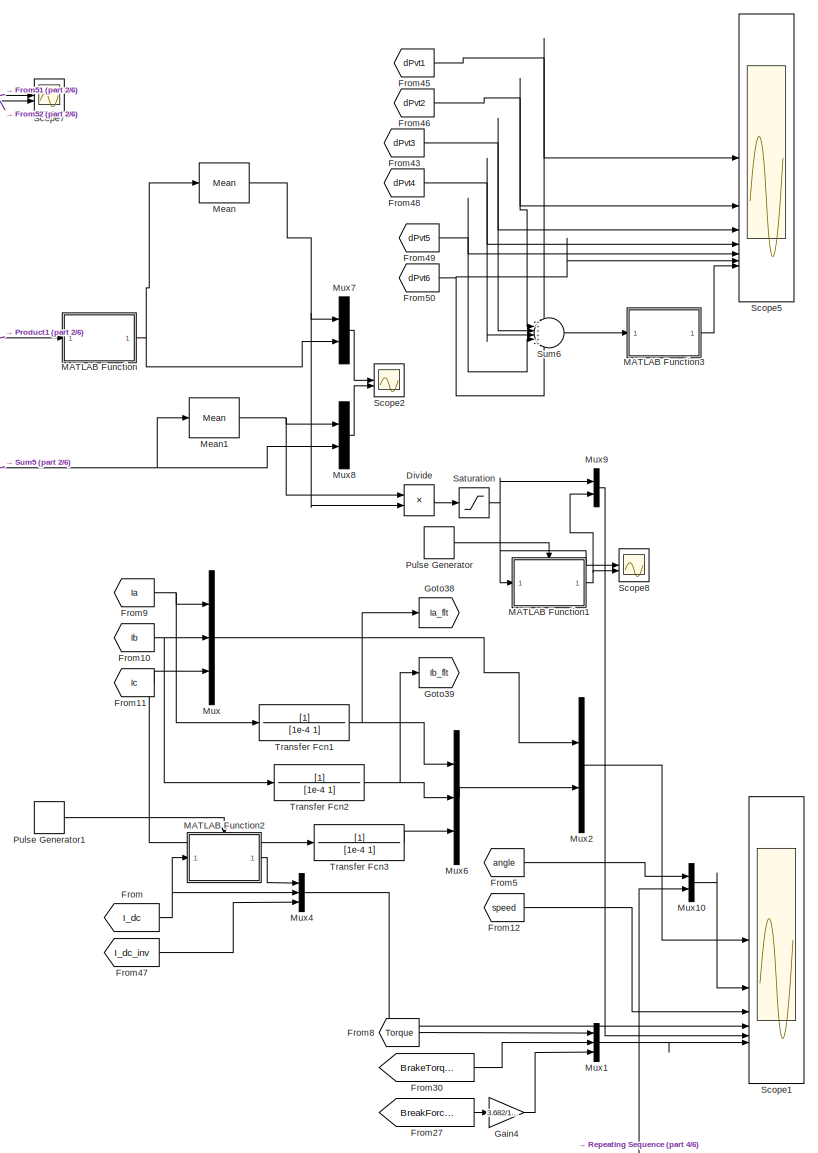
[diagram: root canvas - part 1/6, top right region]
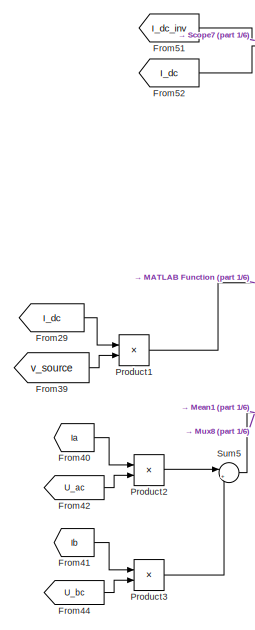
[diagram: root canvas - part 2/6, top center region]
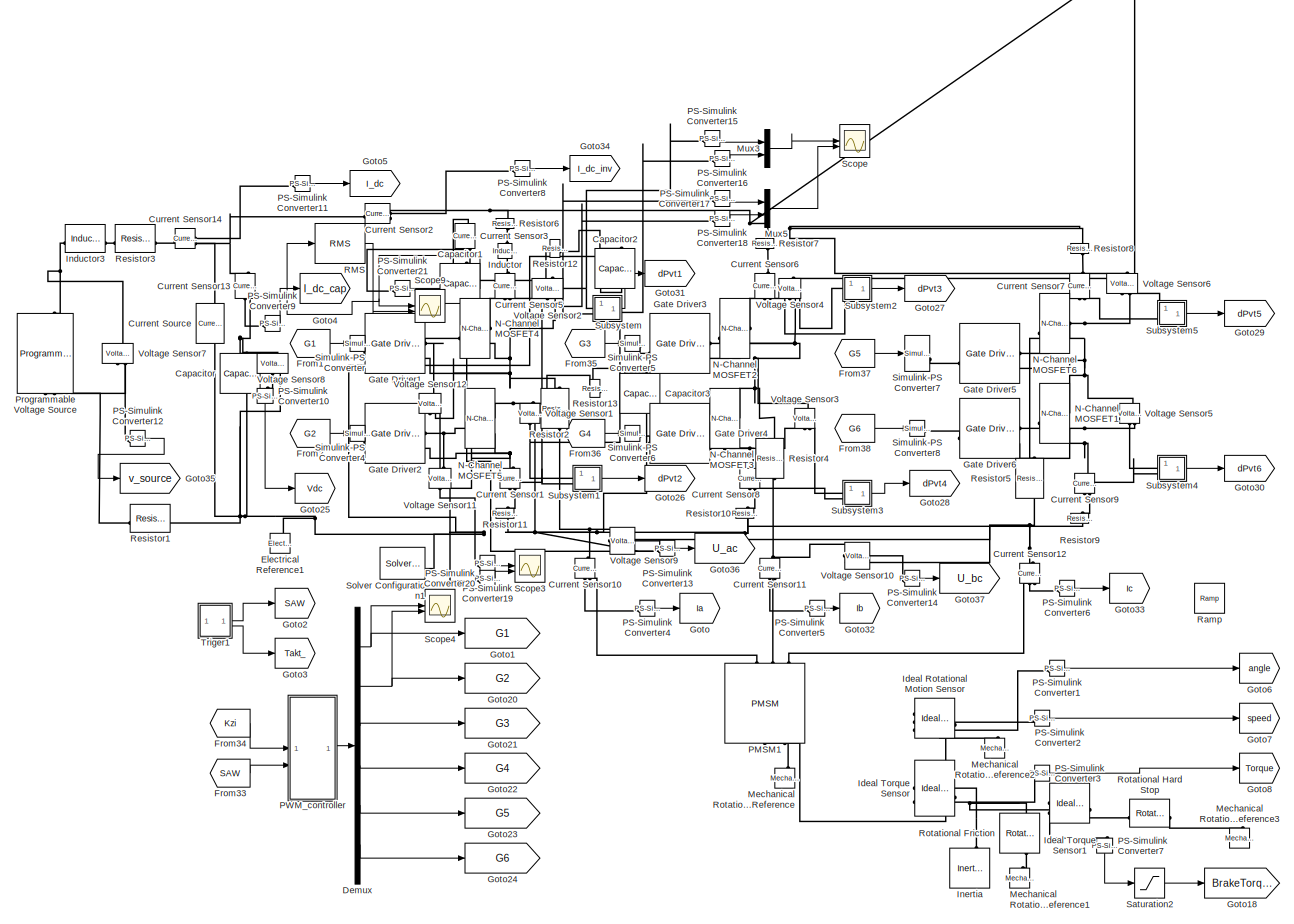
[diagram: root canvas - part 3/6, middle left region]
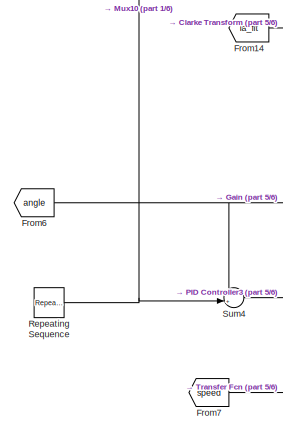
[diagram: root canvas - part 4/6, bottom left region]
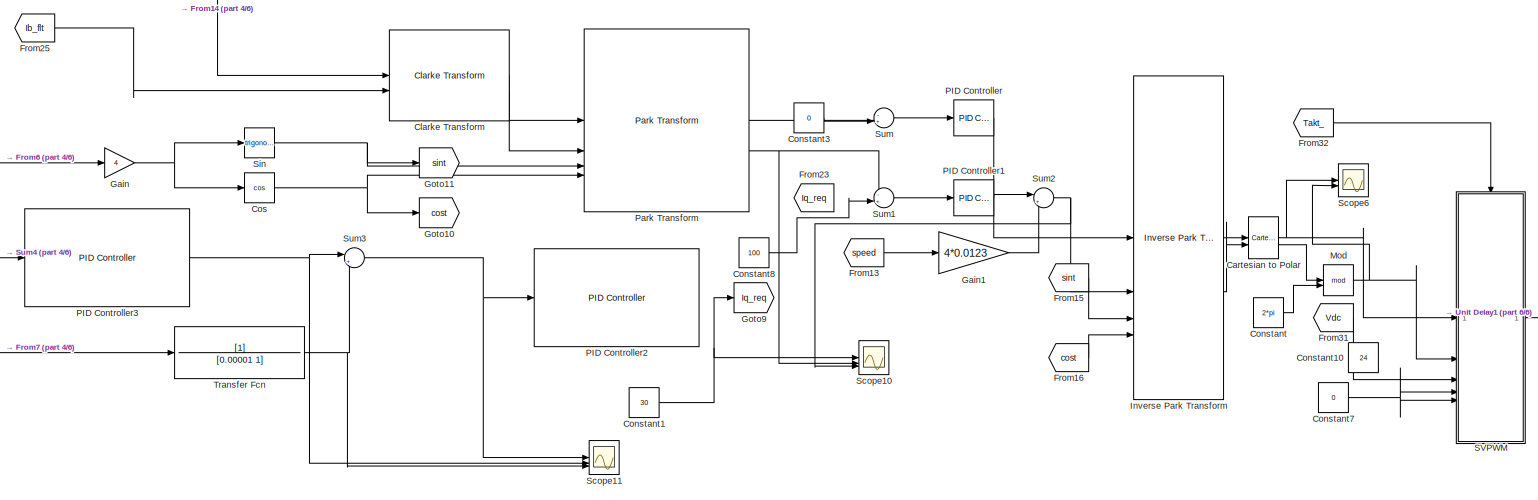
[diagram: root canvas - part 5/6, bottom center region]
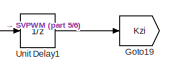
[diagram: root canvas - part 6/6, bottom right region]
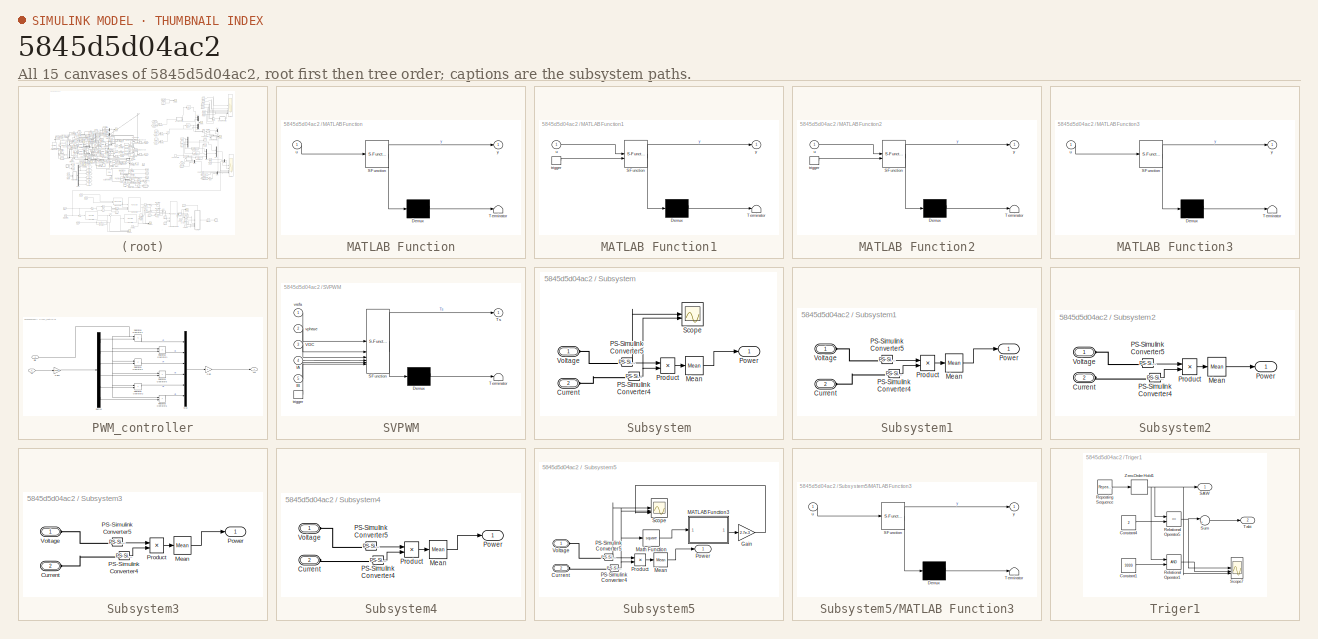
[diagram: thumbnail index - all 15 canvases of the model, root first then tree order]
MODEL slx_5845d5d04ac2
KIND model
CONFIG AbsTol = auto
CONFIG EnableMultiTasking = off
CONFIG FixedStep = auto
CONFIG MaxStep = 2.5e-6
CONFIG MinStep = auto
CONFIG RelTol = 1e-3
CONFIG SampleTimeConstraint = Unconstrained
CONFIG SolverName = daessc
CONFIG StartTime = 0.0
CONFIG StopTime = 0.005
BLOCK [Reference] Capacitor  REF=fl_lib/Electrical/Electrical Elements/Capacitor
  NameLocation = left
  SourceBlock = fl_lib/Electrical/Electrical Elements/Capacitor
  SourceType = Capacitor
BLOCK [Reference] Capacitor1  REF=fl_lib/Electrical/Electrical Elements/Capacitor
  NameLocation = left
  SourceBlock = fl_lib/Electrical/Electrical Elements/Capacitor
  SourceType = Capacitor
BLOCK [Reference] Capacitor2  REF=fl_lib/Electrical/Electrical Elements/Capacitor
  NameLocation = left
  SourceBlock = fl_lib/Electrical/Electrical Elements/Capacitor
  SourceType = Capacitor
BLOCK [Reference] Capacitor3  REF=fl_lib/Electrical/Electrical Elements/Capacitor
  NameLocation = left
  SourceBlock = fl_lib/Electrical/Electrical Elements/Capacitor
  SourceType = Capacitor
BLOCK [Reference] Cartesian to Polar  REF=simulink_extras/Transformations/Cartesian to
Polar
  SourceBlock = simulink_extras/Transformations/Cartesian to\nPolar
  SourceType = Cart2Polar
BLOCK [Reference] Clarke Transform  REF=mcbcontrolslib/Clarke Transform
  LibrarySourceBlock = mcbhdllib/Controls/Math Transforms/Clarke Transform
  SourceBlock = mcbcontrolslib/Clarke Transform
  SourceType = Clarke Transform
BLOCK [Constant] Constant
  Value = 2*pi
BLOCK [Constant] Constant1
  Value = 30
BLOCK [Constant] Constant10
  Value = 24
BLOCK [Constant] Constant3
  Value = 0
BLOCK [Constant] Constant7
  Value = 0
BLOCK [Constant] Constant8
  Value = 100
BLOCK [Trigonometry] Cos
  Operator = cos
BLOCK [Reference] Current Sensor1  REF=fl_lib/Electrical/Electrical Sensors/Current Sensor
  LibrarySourceBlock = ee_lib/Sensors &\nTransducers/Current Sensor
  NameLocation = left
  SourceBlock = fl_lib/Electrical/Electrical Sensors/Current Sensor
  SourceType = Current Sensor
BLOCK [Reference] Current Sensor10  REF=fl_lib/Electrical/Electrical Sensors/Current Sensor
  LibrarySourceBlock = ee_lib/Sensors &\nTransducers/Current Sensor
  NameLocation = left
  SourceBlock = fl_lib/Electrical/Electrical Sensors/Current Sensor
  SourceType = Current Sensor
BLOCK [Reference] Current Sensor11  REF=fl_lib/Electrical/Electrical Sensors/Current Sensor
  LibrarySourceBlock = ee_lib/Sensors &\nTransducers/Current Sensor
  NameLocation = left
  SourceBlock = fl_lib/Electrical/Electrical Sensors/Current Sensor
  SourceType = Current Sensor
BLOCK [Reference] Current Sensor12  REF=fl_lib/Electrical/Electrical Sensors/Current Sensor
  LibrarySourceBlock = ee_lib/Sensors &\nTransducers/Current Sensor
  NameLocation = left
  SourceBlock = fl_lib/Electrical/Electrical Sensors/Current Sensor
  SourceType = Current Sensor
BLOCK [Reference] Current Sensor13  REF=fl_lib/Electrical/Electrical Sensors/Current Sensor
  LibrarySourceBlock = ee_lib/Sensors &\nTransducers/Current Sensor
  NameLocation = left
  SourceBlock = fl_lib/Electrical/Electrical Sensors/Current Sensor
  SourceType = Current Sensor
BLOCK [Reference] Current Sensor14  REF=fl_lib/Electrical/Electrical Sensors/Current Sensor
  LibrarySourceBlock = ee_lib/Sensors &\nTransducers/Current Sensor
  SourceBlock = fl_lib/Electrical/Electrical Sensors/Current Sensor
  SourceType = Current Sensor
BLOCK [Reference] Current Sensor2  REF=fl_lib/Electrical/Electrical Sensors/Current Sensor
  LibrarySourceBlock = ee_lib/Sensors &\nTransducers/Current Sensor
  SourceBlock = fl_lib/Electrical/Electrical Sensors/Current Sensor
  SourceType = Current Sensor
BLOCK [Reference] Current Sensor3  REF=fl_lib/Electrical/Electrical Sensors/Current Sensor
  LibrarySourceBlock = ee_lib/Sensors &\nTransducers/Current Sensor
  NameLocation = left
  SourceBlock = fl_lib/Electrical/Electrical Sensors/Current Sensor
  SourceType = Current Sensor
BLOCK [Reference] Current Sensor5  REF=fl_lib/Electrical/Electrical Sensors/Current Sensor
  LibrarySourceBlock = ee_lib/Sensors &\nTransducers/Current Sensor
  NameLocation = left
  SourceBlock = fl_lib/Electrical/Electrical Sensors/Current Sensor
  SourceType = Current Sensor
BLOCK [Reference] Current Sensor6  REF=fl_lib/Electrical/Electrical Sensors/Current Sensor
  LibrarySourceBlock = ee_lib/Sensors &\nTransducers/Current Sensor
  NameLocation = left
  SourceBlock = fl_lib/Electrical/Electrical Sensors/Current Sensor
  SourceType = Current Sensor
BLOCK [Reference] Current Sensor7  REF=fl_lib/Electrical/Electrical Sensors/Current Sensor
  LibrarySourceBlock = ee_lib/Sensors &\nTransducers/Current Sensor
  NameLocation = left
  SourceBlock = fl_lib/Electrical/Electrical Sensors/Current Sensor
  SourceType = Current Sensor
BLOCK [Reference] Current Sensor8  REF=fl_lib/Electrical/Electrical Sensors/Current Sensor
  LibrarySourceBlock = ee_lib/Sensors &\nTransducers/Current Sensor
  NameLocation = left
  SourceBlock = fl_lib/Electrical/Electrical Sensors/Current Sensor
  SourceType = Current Sensor
BLOCK [Reference] Current Sensor9  REF=fl_lib/Electrical/Electrical Sensors/Current Sensor
  LibrarySourceBlock = ee_lib/Sensors &\nTransducers/Current Sensor
  NameLocation = left
  SourceBlock = fl_lib/Electrical/Electrical Sensors/Current Sensor
  SourceType = Current Sensor
BLOCK [Reference] Current Source  REF=ee_lib/Sources/Current Source
  NameLocation = left
  SourceBlock = ee_lib/Sources/Current Source
  SourceType = Current Source
BLOCK [Demux] Demux
  Outputs = 6
BLOCK [Product] Divide
  Inputs = */
BLOCK [Reference] Electrical Reference1  REF=fl_lib/Electrical/Electrical Elements/Electrical Reference
  LibrarySourceBlock = ee_lib/Connectors &\nReferences/Electrical Reference
  NameLocation = right
  SourceBlock = fl_lib/Electrical/Electrical Elements/Electrical Reference
  SourceType = Electrical Reference
BLOCK [From] From
  GotoTag = I_dc
BLOCK [From] From1
  GotoTag = G1
BLOCK [From] From10
  GotoTag = Ib
BLOCK [From] From11
  GotoTag = Ic
BLOCK [From] From12
  GotoTag = speed
BLOCK [From] From13
  GotoTag = speed
BLOCK [From] From14
  GotoTag = Ia_flt
BLOCK [From] From15
  GotoTag = sint
BLOCK [From] From16
  GotoTag = cost
BLOCK [From] From2
  GotoTag = G2
BLOCK [From] From23
  GotoTag = Iq_req
BLOCK [From] From25
  GotoTag = Ib_flt
BLOCK [From] From27
  GotoTag = BreakForcePc
BLOCK [From] From29
  GotoTag = I_dc
BLOCK [From] From30
  GotoTag = BrakeTorque
BLOCK [From] From31
  GotoTag = Vdc
BLOCK [From] From32
  GotoTag = Takt_
BLOCK [From] From33
  GotoTag = SAW
BLOCK [From] From34
  GotoTag = Kzi
BLOCK [From] From35
  GotoTag = G3
BLOCK [From] From36
  GotoTag = G4
BLOCK [From] From37
  GotoTag = G5
BLOCK [From] From38
  GotoTag = G6
BLOCK [From] From39
  GotoTag = v_source
BLOCK [From] From40
  GotoTag = Ia
BLOCK [From] From41
  GotoTag = Ib
BLOCK [From] From42
  GotoTag = U_ac
BLOCK [From] From43
  GotoTag = dPvt3
BLOCK [From] From44
  GotoTag = U_bc
BLOCK [From] From45
  GotoTag = dPvt1
BLOCK [From] From46
  GotoTag = dPvt2
BLOCK [From] From47
  GotoTag = I_dc_inv
BLOCK [From] From48
  GotoTag = dPvt4
BLOCK [From] From49
  GotoTag = dPvt5
BLOCK [From] From5
  GotoTag = angle
BLOCK [From] From50
  GotoTag = dPvt6
BLOCK [From] From51
  GotoTag = I_dc_inv
BLOCK [From] From52
  GotoTag = I_dc
BLOCK [From] From6
  GotoTag = angle
BLOCK [From] From7
  GotoTag = speed
BLOCK [From] From8
  GotoTag = Torque
BLOCK [From] From9
  GotoTag = Ia
BLOCK [Gain] Gain
  Gain = 4
BLOCK [Gain] Gain1
  Gain = 4*0.0123
  NameLocation = top
BLOCK [Gain] Gain4
  Gain = 3.682/100
BLOCK [Reference] Gate Driver1  REF=ee_lib/Semiconductors &
Converters/Gate Driver
  SourceBlock = ee_lib/Semiconductors &\nConverters/Gate Driver
  SourceType = Gate Driver
BLOCK [Reference] Gate Driver2  REF=ee_lib/Semiconductors &
Converters/Gate Driver
  SourceBlock = ee_lib/Semiconductors &\nConverters/Gate Driver
  SourceType = Gate Driver
BLOCK [Reference] Gate Driver3  REF=ee_lib/Semiconductors &
Converters/Gate Driver
  SourceBlock = ee_lib/Semiconductors &\nConverters/Gate Driver
  SourceType = Gate Driver
BLOCK [Reference] Gate Driver4  REF=ee_lib/Semiconductors &
Converters/Gate Driver
  SourceBlock = ee_lib/Semiconductors &\nConverters/Gate Driver
  SourceType = Gate Driver
BLOCK [Reference] Gate Driver5  REF=ee_lib/Semiconductors &
Converters/Gate Driver
  SourceBlock = ee_lib/Semiconductors &\nConverters/Gate Driver
  SourceType = Gate Driver
BLOCK [Reference] Gate Driver6  REF=ee_lib/Semiconductors &
Converters/Gate Driver
  SourceBlock = ee_lib/Semiconductors &\nConverters/Gate Driver
  SourceType = Gate Driver
BLOCK [Goto] Goto
  GotoTag = Ia
BLOCK [Goto] Goto1
  GotoTag = G1
BLOCK [Goto] Goto10
  GotoTag = cost
BLOCK [Goto] Goto11
  GotoTag = sint
BLOCK [Goto] Goto18
  GotoTag = BrakeTorque
BLOCK [Goto] Goto19
  GotoTag = Kzi
BLOCK [Goto] Goto2
  GotoTag = SAW
BLOCK [Goto] Goto20
  GotoTag = G2
BLOCK [Goto] Goto21
  GotoTag = G3
BLOCK [Goto] Goto22
  GotoTag = G4
BLOCK [Goto] Goto23
  GotoTag = G5
BLOCK [Goto] Goto24
  GotoTag = G6
BLOCK [Goto] Goto25
  GotoTag = Vdc
BLOCK [Goto] Goto26
  GotoTag = dPvt2
BLOCK [Goto] Goto27
  GotoTag = dPvt3
BLOCK [Goto] Goto28
  GotoTag = dPvt4
BLOCK [Goto] Goto29
  GotoTag = dPvt5
BLOCK [Goto] Goto3
  GotoTag = Takt_
BLOCK [Goto] Goto30
  GotoTag = dPvt6
BLOCK [Goto] Goto31
  GotoTag = dPvt1
BLOCK [Goto] Goto32
  GotoTag = Ib
BLOCK [Goto] Goto33
  GotoTag = Ic
BLOCK [Goto] Goto34
  GotoTag = I_dc_inv
BLOCK [Goto] Goto35
  GotoTag = v_source
BLOCK [Goto] Goto36
  GotoTag = U_ac
BLOCK [Goto] Goto37
  GotoTag = U_bc
BLOCK [Goto] Goto38
  GotoTag = Ia_flt
BLOCK [Goto] Goto39
  GotoTag = Ib_flt
BLOCK [Goto] Goto4
  GotoTag = I_dc_cap
BLOCK [Goto] Goto5
  GotoTag = I_dc
BLOCK [Goto] Goto6
  GotoTag = angle
BLOCK [Goto] Goto7
  GotoTag = speed
BLOCK [Goto] Goto8
  GotoTag = Torque
BLOCK [Goto] Goto9
  GotoTag = Iq_req
BLOCK [Reference] Ideal Rotational Motion Sensor  REF=fl_lib/Mechanical/Mechanical Sensors/Ideal Rotational
Motion Sensor
  NameLocation = top
  SourceBlock = fl_lib/Mechanical/Mechanical Sensors/Ideal Rotational\nMotion Sensor
  SourceType = Ideal Rotational\nMotion Sensor
BLOCK [Reference] Ideal Torque Sensor  REF=fl_lib/Mechanical/Mechanical Sensors/Ideal Torque Sensor
  NameLocation = top
  SourceBlock = fl_lib/Mechanical/Mechanical Sensors/Ideal Torque Sensor
  SourceType = Ideal Torque Sensor
BLOCK [Reference] Ideal Torque Sensor1  REF=fl_lib/Mechanical/Mechanical Sensors/Ideal Torque Sensor
  NameLocation = top
  SourceBlock = fl_lib/Mechanical/Mechanical Sensors/Ideal Torque Sensor
  SourceType = Ideal Torque Sensor
BLOCK [Reference] Inductor  REF=fl_lib/Electrical/Electrical Elements/Inductor
  NameLocation = left
  SourceBlock = fl_lib/Electrical/Electrical Elements/Inductor
  SourceType = Inductor
BLOCK [Reference] Inductor3  REF=ee_lib/Passive/Inductor
  SourceBlock = ee_lib/Passive/Inductor
  SourceType = Inductor
BLOCK [Reference] Inertia  REF=fl_lib/Mechanical/Rotational Elements/Inertia
  NameLocation = right
  SourceBlock = fl_lib/Mechanical/Rotational Elements/Inertia
  SourceType = Inertia
BLOCK [Reference] Inverse Park Transform  REF=mcbcontrolslib/Inverse Park Transform
  LibrarySourceBlock = mcbhdllib/Controls/Math Transforms/Inverse Park Transform
  SourceBlock = mcbcontrolslib/Inverse Park Transform
  SourceType = Inverse Park Transform
BLOCK [SubSystem] MATLAB Function
  ErrorFcn = Stateflow.Translate.translate
  LibrarySourceBlock = simulink/User-Defined\nFunctions/MATLAB Function
  PermitHierarchicalResolution = ExplicitOnly
  SFBlockType = MATLAB Function
  TreatAsAtomicUnit = on
BLOCK [Demux] MATLAB Function/ Demux 
  Outputs = 1
BLOCK [S-Function] MATLAB Function/ SFunction 
  EnableBusSupport = on
  FunctionName = sf_sfun
  PortCounts = [1 2]
  SFcnIsStateOwnerBlock = off
  SFunctionDeploymentMode = off
  Tag = Stateflow S-Function 2
BLOCK [Terminator] MATLAB Function/ Terminator 
BLOCK [Inport] MATLAB Function/u
BLOCK [Outport] MATLAB Function/y
BLOCK [SubSystem] MATLAB Function1
  ErrorFcn = Stateflow.Translate.translate
  LibrarySourceBlock = simulink/User-Defined\nFunctions/MATLAB Function
  PermitHierarchicalResolution = ExplicitOnly
  SFBlockType = MATLAB Function
  TreatAsAtomicUnit = on
BLOCK [Demux] MATLAB Function1/ Demux 
  Outputs = 1
BLOCK [S-Function] MATLAB Function1/ SFunction 
  EnableBusSupport = on
  FunctionName = sf_sfun
  PortCounts = [2 2]
  SFcnIsStateOwnerBlock = off
  SFunctionDeploymentMode = off
  Tag = Stateflow S-Function 3
BLOCK [Terminator] MATLAB Function1/ Terminator 
BLOCK [TriggerPort] MATLAB Function1/trigger
  ShowOutputPort = on
  StatesWhenEnabling = held
  VariantControl = (inherit)
BLOCK [Inport] MATLAB Function1/u
BLOCK [Outport] MATLAB Function1/y
BLOCK [SubSystem] MATLAB Function2
  ErrorFcn = Stateflow.Translate.translate
  LibrarySourceBlock = simulink/User-Defined\nFunctions/MATLAB Function
  PermitHierarchicalResolution = ExplicitOnly
  SFBlockType = MATLAB Function
  TreatAsAtomicUnit = on
BLOCK [Demux] MATLAB Function2/ Demux 
  Outputs = 1
BLOCK [S-Function] MATLAB Function2/ SFunction 
  EnableBusSupport = on
  FunctionName = sf_sfun
  PortCounts = [2 2]
  SFcnIsStateOwnerBlock = off
  SFunctionDeploymentMode = off
  Tag = Stateflow S-Function 4
BLOCK [Terminator] MATLAB Function2/ Terminator 
BLOCK [TriggerPort] MATLAB Function2/trigger
  ShowOutputPort = on
  StatesWhenEnabling = held
  VariantControl = (inherit)
BLOCK [Inport] MATLAB Function2/u
BLOCK [Outport] MATLAB Function2/y
BLOCK [SubSystem] MATLAB Function3
  ErrorFcn = Stateflow.Translate.translate
  LibrarySourceBlock = simulink/User-Defined\nFunctions/MATLAB Function
  PermitHierarchicalResolution = ExplicitOnly
  SFBlockType = MATLAB Function
  SystemSampleTime = 1e-6
  TreatAsAtomicUnit = on
BLOCK [Demux] MATLAB Function3/ Demux 
  Outputs = 1
BLOCK [S-Function] MATLAB Function3/ SFunction 
  EnableBusSupport = on
  FunctionName = sf_sfun
  PortCounts = [1 2]
  SFcnIsStateOwnerBlock = off
  SFunctionDeploymentMode = off
  Tag = Stateflow S-Function 5
BLOCK [Terminator] MATLAB Function3/ Terminator 
BLOCK [Inport] MATLAB Function3/u
BLOCK [Outport] MATLAB Function3/y
BLOCK [Reference] Mean  REF=spsMeanLib/Mean
  LibrarySourceBlock = sps_lib/Sensors and Measurements/Mean
  SourceBlock = spsMeanLib/Mean
  SourceType = Mean
BLOCK [Reference] Mean1  REF=spsMeanLib/Mean
  LibrarySourceBlock = sps_lib/Sensors and Measurements/Mean
  SourceBlock = spsMeanLib/Mean
  SourceType = Mean
BLOCK [Reference] Mechanical Rotational Reference  REF=fl_lib/Mechanical/Rotational Elements/Mechanical
Rotational Reference
  NameLocation = right
  SourceBlock = fl_lib/Mechanical/Rotational Elements/Mechanical\nRotational Reference
  SourceType = Mechanical\nRotational Reference
BLOCK [Reference] Mechanical Rotational Reference1  REF=fl_lib/Mechanical/Rotational Elements/Mechanical
Rotational Reference
  NameLocation = right
  SourceBlock = fl_lib/Mechanical/Rotational Elements/Mechanical\nRotational Reference
  SourceType = Mechanical\nRotational Reference
BLOCK [Reference] Mechanical Rotational Reference2  REF=fl_lib/Mechanical/Rotational Elements/Mechanical
Rotational Reference
  NameLocation = right
  SourceBlock = fl_lib/Mechanical/Rotational Elements/Mechanical\nRotational Reference
  SourceType = Mechanical\nRotational Reference
BLOCK [Reference] Mechanical Rotational Reference3  REF=fl_lib/Mechanical/Rotational Elements/Mechanical
Rotational Reference
  NameLocation = right
  SourceBlock = fl_lib/Mechanical/Rotational Elements/Mechanical\nRotational Reference
  SourceType = Mechanical\nRotational Reference
BLOCK [Math] Mod
  Operator = mod
BLOCK [Mux] Mux
  DisplayOption = bar
  Inputs = 3
BLOCK [Mux] Mux1
  DisplayOption = bar
  Inputs = 3
BLOCK [Mux] Mux10
  DisplayOption = bar
  Inputs = 2
BLOCK [Mux] Mux2
  DisplayOption = bar
  Inputs = 2
BLOCK [Mux] Mux3
  DisplayOption = bar
  Inputs = 2
BLOCK [Mux] Mux4
  DisplayOption = bar
  Inputs = 3
BLOCK [Mux] Mux5
  DisplayOption = bar
  Inputs = 2
BLOCK [Mux] Mux6
  DisplayOption = bar
  Inputs = 3
BLOCK [Mux] Mux7
  DisplayOption = bar
  Inputs = 2
BLOCK [Mux] Mux8
  DisplayOption = bar
  Inputs = 2
BLOCK [Mux] Mux9
  DisplayOption = bar
  Inputs = 2
BLOCK [Reference] N-Channel MOSFET1  REF=ee_lib/Semiconductors &
Converters/N-Channel MOSFET
  SourceBlock = ee_lib/Semiconductors &\nConverters/N-Channel MOSFET
  SourceType = N-Channel MOSFET
BLOCK [Reference] N-Channel MOSFET2  REF=ee_lib/Semiconductors &
Converters/N-Channel MOSFET
  SourceBlock = ee_lib/Semiconductors &\nConverters/N-Channel MOSFET
  SourceType = N-Channel MOSFET
BLOCK [Reference] N-Channel MOSFET3  REF=ee_lib/Semiconductors &
Converters/N-Channel MOSFET
  SourceBlock = ee_lib/Semiconductors &\nConverters/N-Channel MOSFET
  SourceType = N-Channel MOSFET
BLOCK [Reference] N-Channel MOSFET4  REF=ee_lib/Semiconductors &
Converters/N-Channel MOSFET
  SourceBlock = ee_lib/Semiconductors &\nConverters/N-Channel MOSFET
  SourceType = N-Channel MOSFET
BLOCK [Reference] N-Channel MOSFET5  REF=ee_lib/Semiconductors &
Converters/N-Channel MOSFET
  SourceBlock = ee_lib/Semiconductors &\nConverters/N-Channel MOSFET
  SourceType = N-Channel MOSFET
BLOCK [Reference] N-Channel MOSFET6  REF=ee_lib/Semiconductors &
Converters/N-Channel MOSFET
  SourceBlock = ee_lib/Semiconductors &\nConverters/N-Channel MOSFET
  SourceType = N-Channel MOSFET
BLOCK [Reference] PID Controller  REF=slpidlib/PID Controller
  LibrarySourceBlock = simulink/Continuous/PID Controller
  SourceBlock = slpidlib/PID Controller
  SourceType = PID 1dof
BLOCK [Reference] PID Controller1  REF=slpidlib/PID Controller
  LibrarySourceBlock = simulink/Continuous/PID Controller
  SourceBlock = slpidlib/PID Controller
  SourceType = PID 1dof
BLOCK [Reference] PID Controller2  REF=slpidlib/PID Controller
  LibrarySourceBlock = simulink/Continuous/PID Controller
  SourceBlock = slpidlib/PID Controller
  SourceType = PID 1dof
BLOCK [Reference] PID Controller3  REF=slpidlib/PID Controller
  LibrarySourceBlock = simulink/Continuous/PID Controller
  SourceBlock = slpidlib/PID Controller
  SourceType = PID 1dof
BLOCK [Reference] PMSM1  REF=ee_lib/Electromechanical/Permanent Magnet/PMSM
  NameLocation = right
  SourceBlock = ee_lib/Electromechanical/Permanent Magnet/PMSM
  SourceType = PMSM
BLOCK [Reference] PS-Simulink Converter1  REF=nesl_utility/PS-Simulink
Converter
  SourceBlock = nesl_utility/PS-Simulink\nConverter
  SourceType = PS-Simulink\nConverter
BLOCK [Reference] PS-Simulink Converter10  REF=nesl_utility/PS-Simulink
Converter
  NameLocation = left
  SourceBlock = nesl_utility/PS-Simulink\nConverter
  SourceType = PS-Simulink\nConverter
BLOCK [Reference] PS-Simulink Converter11  REF=nesl_utility/PS-Simulink
Converter
  SourceBlock = nesl_utility/PS-Simulink\nConverter
  SourceType = PS-Simulink\nConverter
BLOCK [Reference] PS-Simulink Converter12  REF=nesl_utility/PS-Simulink
Converter
  SourceBlock = nesl_utility/PS-Simulink\nConverter
  SourceType = PS-Simulink\nConverter
BLOCK [Reference] PS-Simulink Converter13  REF=nesl_utility/PS-Simulink
Converter
  SourceBlock = nesl_utility/PS-Simulink\nConverter
  SourceType = PS-Simulink\nConverter
BLOCK [Reference] PS-Simulink Converter14  REF=nesl_utility/PS-Simulink
Converter
  SourceBlock = nesl_utility/PS-Simulink\nConverter
  SourceType = PS-Simulink\nConverter
BLOCK [Reference] PS-Simulink Converter15  REF=nesl_utility/PS-Simulink
Converter
  SourceBlock = nesl_utility/PS-Simulink\nConverter
  SourceType = PS-Simulink\nConverter
BLOCK [Reference] PS-Simulink Converter16  REF=nesl_utility/PS-Simulink
Converter
  SourceBlock = nesl_utility/PS-Simulink\nConverter
  SourceType = PS-Simulink\nConverter
BLOCK [Reference] PS-Simulink Converter17  REF=nesl_utility/PS-Simulink
Converter
  SourceBlock = nesl_utility/PS-Simulink\nConverter
  SourceType = PS-Simulink\nConverter
BLOCK [Reference] PS-Simulink Converter18  REF=nesl_utility/PS-Simulink
Converter
  SourceBlock = nesl_utility/PS-Simulink\nConverter
  SourceType = PS-Simulink\nConverter
BLOCK [Reference] PS-Simulink Converter19  REF=nesl_utility/PS-Simulink
Converter
  SourceBlock = nesl_utility/PS-Simulink\nConverter
  SourceType = PS-Simulink\nConverter
BLOCK [Reference] PS-Simulink Converter2  REF=nesl_utility/PS-Simulink
Converter
  SourceBlock = nesl_utility/PS-Simulink\nConverter
  SourceType = PS-Simulink\nConverter
BLOCK [Reference] PS-Simulink Converter20  REF=nesl_utility/PS-Simulink
Converter
  SourceBlock = nesl_utility/PS-Simulink\nConverter
  SourceType = PS-Simulink\nConverter
BLOCK [Reference] PS-Simulink Converter21  REF=nesl_utility/PS-Simulink
Converter
  SourceBlock = nesl_utility/PS-Simulink\nConverter
  SourceType = PS-Simulink\nConverter
BLOCK [Reference] PS-Simulink Converter3  REF=nesl_utility/PS-Simulink
Converter
  SourceBlock = nesl_utility/PS-Simulink\nConverter
  SourceType = PS-Simulink\nConverter
BLOCK [Reference] PS-Simulink Converter4  REF=nesl_utility/PS-Simulink
Converter
  SourceBlock = nesl_utility/PS-Simulink\nConverter
  SourceType = PS-Simulink\nConverter
BLOCK [Reference] PS-Simulink Converter5  REF=nesl_utility/PS-Simulink
Converter
  SourceBlock = nesl_utility/PS-Simulink\nConverter
  SourceType = PS-Simulink\nConverter
BLOCK [Reference] PS-Simulink Converter6  REF=nesl_utility/PS-Simulink
Converter
  SourceBlock = nesl_utility/PS-Simulink\nConverter
  SourceType = PS-Simulink\nConverter
BLOCK [Reference] PS-Simulink Converter7  REF=nesl_utility/PS-Simulink
Converter
  NameLocation = left
  SourceBlock = nesl_utility/PS-Simulink\nConverter
  SourceType = PS-Simulink\nConverter
BLOCK [Reference] PS-Simulink Converter8  REF=nesl_utility/PS-Simulink
Converter
  SourceBlock = nesl_utility/PS-Simulink\nConverter
  SourceType = PS-Simulink\nConverter
BLOCK [Reference] PS-Simulink Converter9  REF=nesl_utility/PS-Simulink
Converter
  SourceBlock = nesl_utility/PS-Simulink\nConverter
  SourceType = PS-Simulink\nConverter
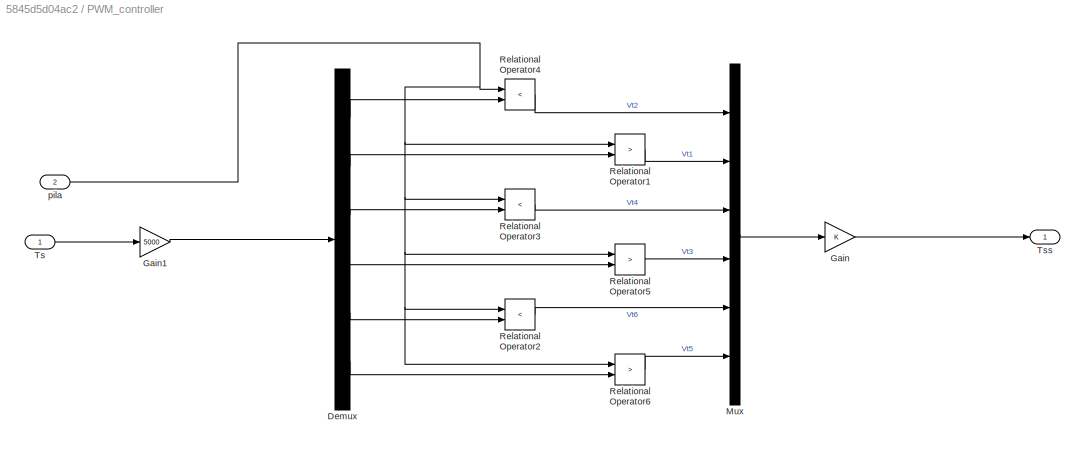
BLOCK [SubSystem] PWM_controller
BLOCK [Demux] PWM_controller/Demux
  Outputs = 6
BLOCK [Gain] PWM_controller/Gain
  ParamDataTypeStr = double
BLOCK [Gain] PWM_controller/Gain1
  Gain = 5000
BLOCK [Mux] PWM_controller/Mux
  DisplayOption = bar
  Inputs = 6
BLOCK [RelationalOperator] PWM_controller/Relational Operator1
  InputSameDT = off
  Operator = >
  OutDataTypeStr = boolean
BLOCK [RelationalOperator] PWM_controller/Relational Operator2
  InputSameDT = off
  Operator = <
  OutDataTypeStr = boolean
BLOCK [RelationalOperator] PWM_controller/Relational Operator3
  InputSameDT = off
  Operator = <
  OutDataTypeStr = boolean
BLOCK [RelationalOperator] PWM_controller/Relational Operator4
  InputSameDT = off
  Operator = <
  OutDataTypeStr = boolean
BLOCK [RelationalOperator] PWM_controller/Relational Operator5
  InputSameDT = off
  Operator = >
  OutDataTypeStr = boolean
BLOCK [RelationalOperator] PWM_controller/Relational Operator6
  InputSameDT = off
  Operator = >
  OutDataTypeStr = boolean
BLOCK [Inport] PWM_controller/Ts
BLOCK [Outport] PWM_controller/Tss
  VectorParamsAs1DForOutWhenUnconnected = off
BLOCK [Inport] PWM_controller/pila
  Port = 2
BLOCK [Reference] Park Transform  REF=mcbcontrolslib/Park Transform
  LibrarySourceBlock = mcbhdllib/Controls/Math Transforms/Park Transform
  SourceBlock = mcbcontrolslib/Park Transform
  SourceType = Park Transform
BLOCK [Product] Product1
BLOCK [Product] Product2
BLOCK [Product] Product3
BLOCK [Reference] Programmable Voltage Source  REF=ee_lib/Sources/Programmable Voltage
Source
  NameLocation = right
  SourceBlock = ee_lib/Sources/Programmable Voltage\nSource
  SourceType = Programmable Voltage\nSource
BLOCK [DiscretePulseGenerator] Pulse Generator
  Period = 1e-5
  PulseType = Time based
  PulseWidth = 5
BLOCK [DiscretePulseGenerator] Pulse Generator1
  Period = 1e-6
  PulseType = Time based
  PulseWidth = 5
BLOCK [Reference] RMS  REF=spsRMSLib/RMS
  LibrarySourceBlock = sps_lib/Sensors and Measurements/RMS
  SourceBlock = spsRMSLib/RMS
  SourceType = RMS
BLOCK [Reference] Ramp  REF=simulink/Sources/Ramp
  SourceBlock = simulink/Sources/Ramp
  SourceType = Ramp
BLOCK [Reference] Repeating Sequence  REF=simulink/Sources/Repeating
Sequence
  SourceBlock = simulink/Sources/Repeating\nSequence
  SourceType = Repeating table
BLOCK [Reference] Resistor1  REF=ee_lib/Passive/Resistor
  NameLocation = top
  SourceBlock = ee_lib/Passive/Resistor
  SourceType = Resistor
BLOCK [Reference] Resistor10  REF=ee_lib/Passive/Resistor
  NameLocation = left
  SourceBlock = ee_lib/Passive/Resistor
  SourceType = Resistor
BLOCK [Reference] Resistor11  REF=ee_lib/Passive/Resistor
  NameLocation = left
  SourceBlock = ee_lib/Passive/Resistor
  SourceType = Resistor
BLOCK [Reference] Resistor12  REF=ee_lib/Passive/Resistor
  NameLocation = top
  SourceBlock = ee_lib/Passive/Resistor
  SourceType = Resistor
BLOCK [Reference] Resistor13  REF=ee_lib/Passive/Resistor
  NameLocation = top
  SourceBlock = ee_lib/Passive/Resistor
  SourceType = Resistor
BLOCK [Reference] Resistor2  REF=ee_lib/Passive/Resistor
  NameLocation = left
  SourceBlock = ee_lib/Passive/Resistor
  SourceType = Resistor
BLOCK [Reference] Resistor3  REF=ee_lib/Passive/Resistor
  NameLocation = top
  SourceBlock = ee_lib/Passive/Resistor
  SourceType = Resistor
BLOCK [Reference] Resistor4  REF=ee_lib/Passive/Resistor
  NameLocation = left
  SourceBlock = ee_lib/Passive/Resistor
  SourceType = Resistor
BLOCK [Reference] Resistor5  REF=ee_lib/Passive/Resistor
  NameLocation = left
  SourceBlock = ee_lib/Passive/Resistor
  SourceType = Resistor
BLOCK [Reference] Resistor6  REF=ee_lib/Passive/Resistor
  NameLocation = left
  SourceBlock = ee_lib/Passive/Resistor
  SourceType = Resistor
BLOCK [Reference] Resistor7  REF=ee_lib/Passive/Resistor
  NameLocation = left
  SourceBlock = ee_lib/Passive/Resistor
  SourceType = Resistor
BLOCK [Reference] Resistor8  REF=ee_lib/Passive/Resistor
  NameLocation = left
  SourceBlock = ee_lib/Passive/Resistor
  SourceType = Resistor
BLOCK [Reference] Resistor9  REF=ee_lib/Passive/Resistor
  NameLocation = left
  SourceBlock = ee_lib/Passive/Resistor
  SourceType = Resistor
BLOCK [Reference] Rotational Friction  REF=fl_lib/Mechanical/Rotational Elements/Rotational Friction
  NameLocation = left
  SourceBlock = fl_lib/Mechanical/Rotational Elements/Rotational Friction
  SourceType = Rotational Friction
BLOCK [Reference] Rotational Hard Stop  REF=fl_lib/Mechanical/Rotational Elements/Rotational Hard Stop
  SourceBlock = fl_lib/Mechanical/Rotational Elements/Rotational Hard Stop
  SourceType = Rotational Hard Stop
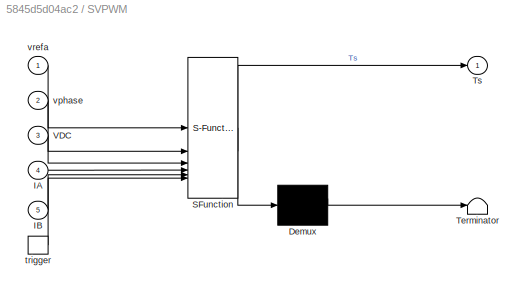
BLOCK [SubSystem] SVPWM
  ErrorFcn = Stateflow.Translate.translate
  PermitHierarchicalResolution = ExplicitOnly
  SFBlockType = MATLAB Function
  TreatAsAtomicUnit = on
BLOCK [Demux] SVPWM/ Demux 
  Outputs = 1
BLOCK [S-Function] SVPWM/ SFunction 
  EnableBusSupport = on
  FunctionName = sf_sfun
  PortCounts = [6 2]
  SFcnIsStateOwnerBlock = off
  SFunctionDeploymentMode = off
  Tag = Stateflow S-Function 1
BLOCK [Terminator] SVPWM/ Terminator 
BLOCK [Inport] SVPWM/IA
  Port = 4
BLOCK [Inport] SVPWM/IB
  Port = 5
BLOCK [Outport] SVPWM/Ts
  VectorParamsAs1DForOutWhenUnconnected = off
BLOCK [Inport] SVPWM/VDC
  Port = 3
BLOCK [TriggerPort] SVPWM/trigger
  ShowOutputPort = on
  StatesWhenEnabling = held
  VariantControl = (inherit)
BLOCK [Inport] SVPWM/vphase
  Port = 2
BLOCK [Inport] SVPWM/vrefa
BLOCK [Saturate] Saturation
  LowerLimit = 0
  UpperLimit = 2
BLOCK [Saturate] Saturation2
  LowerLimit = 0
  UpperLimit = 5
BLOCK [Scope] Scope
  Floating = off
  NumInputPorts = 2
  ScopeSpecificationString = Simulink.scopes.TimeScopeBlockCfg('CurrentConfiguration', extmgr.ConfigurationSet(extmgr.Configuration('Core','General UI',true),extmgr.Configuration('Core','Source UI',true),extmgr.Configuration('Sources','WiredSimulink',true,'DataLoggingVariableName','ScopeData1'),extmgr.Configuration('Visuals','Time Domain',true,'SerializedDisplays',{struct('MinYLimReal','-1.62364','MaxYLimReal','26.19442','YLa...<+2334ch>
BLOCK [Scope] Scope1
  Floating = off
  NumInputPorts = 6
  ScopeSpecificationString = Simulink.scopes.TimeScopeBlockCfg('CurrentConfiguration', extmgr.ConfigurationSet(extmgr.Configuration('Core','General UI',true),extmgr.Configuration('Core','Source UI',true),extmgr.Configuration('Sources','WiredSimulink',true,'DataLoggingVariableName','ScopeData1'),extmgr.Configuration('Visuals','Time Domain',true,'SerializedDisplays',{struct('MinYLimReal','-114.23716','MaxYLimReal','114.25583','...<+6803ch>
BLOCK [Scope] Scope10
  Floating = off
  NumInputPorts = 3
  ScopeSpecificationString = Simulink.scopes.TimeScopeBlockCfg('CurrentConfiguration', extmgr.ConfigurationSet(extmgr.Configuration('Core','General UI',true),extmgr.Configuration('Core','Source UI',true),extmgr.Configuration('Sources','WiredSimulink',true,'DataLoggingVariableName','ScopeData1'),extmgr.Configuration('Visuals','Time Domain',true,'SerializedDisplays',{struct('MinYLimReal','-125.00000','MaxYLimReal','125.00000','...<+2804ch>
BLOCK [Scope] Scope11
  Floating = off
  NumInputPorts = 3
  ScopeSpecificationString = Simulink.scopes.TimeScopeBlockCfg('CurrentConfiguration', extmgr.ConfigurationSet(extmgr.Configuration('Core','General UI',true),extmgr.Configuration('Core','Source UI',true),extmgr.Configuration('Sources','WiredSimulink',true,'DataLoggingVariableName','ScopeData1'),extmgr.Configuration('Visuals','Time Domain',true,'SerializedDisplays',{struct('MinYLimReal','-39.375','MaxYLimReal','354.375','YLabe...<+3084ch>
BLOCK [Scope] Scope2
  Floating = off
  NumInputPorts = 2
  ScopeSpecificationString = Simulink.scopes.TimeScopeBlockCfg('CurrentConfiguration', extmgr.ConfigurationSet(extmgr.Configuration('Core','General UI',true),extmgr.Configuration('Core','Source UI',true),extmgr.Configuration('Sources','WiredSimulink',true,'DataLoggingVariableName','ScopeData2'),extmgr.Configuration('Visuals','Time Domain',true,'SerializedDisplays',{struct('MinYLimReal','687.19611','MaxYLimReal','1119.99903','...<+2145ch>
BLOCK [Scope] Scope3
  Floating = off
  NumInputPorts = 2
  ScopeSpecificationString = Simulink.scopes.TimeScopeBlockCfg('CurrentConfiguration', extmgr.ConfigurationSet(extmgr.Configuration('Core','General UI',true),extmgr.Configuration('Core','Source UI',true),extmgr.Configuration('Sources','WiredSimulink',true,'DataLoggingVariableName','ScopeData1'),extmgr.Configuration('Visuals','Time Domain',true,'SerializedDisplays',{struct('MinYLimReal','-2.72281','MaxYLimReal','11.4154','YLab...<+1872ch>
BLOCK [Scope] Scope4
  Floating = off
  NumInputPorts = 2
  ScopeSpecificationString = Simulink.scopes.TimeScopeBlockCfg('CurrentConfiguration', extmgr.ConfigurationSet(extmgr.Configuration('Core','General UI',true),extmgr.Configuration('Core','Source UI',true),extmgr.Configuration('Sources','WiredSimulink',true,'DataLoggingVariableName','ScopeData2'),extmgr.Configuration('Visuals','Time Domain',true,'SerializedDisplays',{struct('MinYLimReal','-0.125','MaxYLimReal','1.125','YLabelRe...<+1799ch>
BLOCK [Scope] Scope5
  Floating = off
  NumInputPorts = 7
  ScopeSpecificationString = Simulink.scopes.TimeScopeBlockCfg('CurrentConfiguration', extmgr.ConfigurationSet(extmgr.Configuration('Core','General UI',true),extmgr.Configuration('Core','Source UI',true),extmgr.Configuration('Sources','WiredSimulink',true,'DataLoggingVariableName','ScopeData1'),extmgr.Configuration('Visuals','Time Domain',true,'SerializedDisplays',{struct('MinYLimReal','-5.50212','MaxYLimReal','49.41462','YLa...<+2530ch>
BLOCK [Scope] Scope6
  Floating = off
  NumInputPorts = 2
  ScopeSpecificationString = Simulink.scopes.TimeScopeBlockCfg('CurrentConfiguration', extmgr.ConfigurationSet(extmgr.Configuration('Core','General UI',true),extmgr.Configuration('Core','Source UI',true),extmgr.Configuration('Sources','WiredSimulink',true,'DataLoggingVariableName','ScopeData5'),extmgr.Configuration('Visuals','Time Domain',true,'SerializedDisplays',{struct('MinYLimReal','-1.70232','MaxYLimReal','15.3209','YLab...<+1572ch>
BLOCK [Scope] Scope7
  Floating = off
  NumInputPorts = 2
  ScopeSpecificationString = Simulink.scopes.TimeScopeBlockCfg('CurrentConfiguration', extmgr.ConfigurationSet(extmgr.Configuration('Core','General UI',true),extmgr.Configuration('Core','Source UI',true),extmgr.Configuration('Sources','WiredSimulink',true,'DataLoggingVariableName','ScopeData1'),extmgr.Configuration('Visuals','Time Domain',true,'SerializedDisplays',{struct('MinYLimReal','-110.26151','MaxYLimReal','552.97201','...<+1493ch>
BLOCK [Scope] Scope8
  Floating = off
  NumInputPorts = 2
  ScopeSpecificationString = Simulink.scopes.TimeScopeBlockCfg('CurrentConfiguration', extmgr.ConfigurationSet(extmgr.Configuration('Core','General UI',true),extmgr.Configuration('Core','Source UI',true),extmgr.Configuration('Sources','WiredSimulink',true,'DataLoggingVariableName','ScopeData2'),extmgr.Configuration('Visuals','Time Domain',true,'SerializedDisplays',{struct('MinYLimReal','-0.25','MaxYLimReal','2.25','YLabelReal...<+1470ch>
BLOCK [Scope] Scope9
  Floating = off
  NumInputPorts = 2
  ScopeSpecificationString = Simulink.scopes.TimeScopeBlockCfg('CurrentConfiguration', extmgr.ConfigurationSet(extmgr.Configuration('Core','General UI',true),extmgr.Configuration('Core','Source UI',true),extmgr.Configuration('Sources','WiredSimulink',true,'DataLoggingVariableName','ScopeData1'),extmgr.Configuration('Visuals','Time Domain',true,'SerializedDisplays',{struct('MinYLimReal','-125.93543','MaxYLimReal','51.37842','Y...<+2109ch>
BLOCK [Reference] Simulink-PS Converter  REF=nesl_utility/Simulink-PS
Converter
  SourceBlock = nesl_utility/Simulink-PS\nConverter
  SourceType = Simulink-PS\nConverter
BLOCK [Reference] Simulink-PS Converter4  REF=nesl_utility/Simulink-PS
Converter
  SourceBlock = nesl_utility/Simulink-PS\nConverter
  SourceType = Simulink-PS\nConverter
BLOCK [Reference] Simulink-PS Converter5  REF=nesl_utility/Simulink-PS
Converter
  SourceBlock = nesl_utility/Simulink-PS\nConverter
  SourceType = Simulink-PS\nConverter
BLOCK [Reference] Simulink-PS Converter6  REF=nesl_utility/Simulink-PS
Converter
  SourceBlock = nesl_utility/Simulink-PS\nConverter
  SourceType = Simulink-PS\nConverter
BLOCK [Reference] Simulink-PS Converter7  REF=nesl_utility/Simulink-PS
Converter
  SourceBlock = nesl_utility/Simulink-PS\nConverter
  SourceType = Simulink-PS\nConverter
BLOCK [Reference] Simulink-PS Converter8  REF=nesl_utility/Simulink-PS
Converter
  SourceBlock = nesl_utility/Simulink-PS\nConverter
  SourceType = Simulink-PS\nConverter
BLOCK [Trigonometry] Sin
BLOCK [Reference] Solver Configuration1  REF=nesl_utility/Solver
Configuration
  SourceBlock = nesl_utility/Solver\nConfiguration
  SourceType = Solver\nConfiguration
BLOCK [SubSystem] Subsystem
BLOCK [PMIOPort] Subsystem/Current
  Port = 2
  Side = Left
BLOCK [Reference] Subsystem/Mean  REF=spsMeanLib/Mean
  LibrarySourceBlock = sps_lib/Sensors and Measurements/Mean
  SourceBlock = spsMeanLib/Mean
  SourceType = Mean
BLOCK [Reference] Subsystem/PS-Simulink Converter4  REF=nesl_utility/PS-Simulink
Converter
  SourceBlock = nesl_utility/PS-Simulink\nConverter
  SourceType = PS-Simulink\nConverter
BLOCK [Reference] Subsystem/PS-Simulink Converter5  REF=nesl_utility/PS-Simulink
Converter
  SourceBlock = nesl_utility/PS-Simulink\nConverter
  SourceType = PS-Simulink\nConverter
BLOCK [Outport] Subsystem/Power
BLOCK [Product] Subsystem/Product
BLOCK [Scope] Subsystem/Scope
  Floating = off
  NumInputPorts = 2
  ScopeSpecificationString = Simulink.scopes.TimeScopeBlockCfg('CurrentConfiguration', extmgr.ConfigurationSet(extmgr.Configuration('Core','General UI',true),extmgr.Configuration('Core','Source UI',true),extmgr.Configuration('Sources','WiredSimulink',true),extmgr.Configuration('Visuals','Time Domain',true,'SerializedDisplays',{struct('MinYLimReal','-4.09597','MaxYLimReal','29.78088','YLabelReal','','MinYLimMag','0.00000','Max...<+2241ch>
BLOCK [PMIOPort] Subsystem/Voltage
  Side = Left
BLOCK [SubSystem] Subsystem1
BLOCK [PMIOPort] Subsystem1/Current
  Port = 2
  Side = Left
BLOCK [Reference] Subsystem1/Mean  REF=spsMeanLib/Mean
  LibrarySourceBlock = sps_lib/Sensors and Measurements/Mean
  SourceBlock = spsMeanLib/Mean
  SourceType = Mean
BLOCK [Reference] Subsystem1/PS-Simulink Converter4  REF=nesl_utility/PS-Simulink
Converter
  SourceBlock = nesl_utility/PS-Simulink\nConverter
  SourceType = PS-Simulink\nConverter
BLOCK [Reference] Subsystem1/PS-Simulink Converter5  REF=nesl_utility/PS-Simulink
Converter
  SourceBlock = nesl_utility/PS-Simulink\nConverter
  SourceType = PS-Simulink\nConverter
BLOCK [Outport] Subsystem1/Power
BLOCK [Product] Subsystem1/Product
BLOCK [PMIOPort] Subsystem1/Voltage
  Side = Left
BLOCK [SubSystem] Subsystem2
BLOCK [PMIOPort] Subsystem2/Current
  Port = 2
  Side = Left
BLOCK [Reference] Subsystem2/Mean  REF=spsMeanLib/Mean
  LibrarySourceBlock = sps_lib/Sensors and Measurements/Mean
  SourceBlock = spsMeanLib/Mean
  SourceType = Mean
BLOCK [Reference] Subsystem2/PS-Simulink Converter4  REF=nesl_utility/PS-Simulink
Converter
  SourceBlock = nesl_utility/PS-Simulink\nConverter
  SourceType = PS-Simulink\nConverter
BLOCK [Reference] Subsystem2/PS-Simulink Converter5  REF=nesl_utility/PS-Simulink
Converter
  SourceBlock = nesl_utility/PS-Simulink\nConverter
  SourceType = PS-Simulink\nConverter
BLOCK [Outport] Subsystem2/Power
BLOCK [Product] Subsystem2/Product
BLOCK [PMIOPort] Subsystem2/Voltage
  Side = Left
BLOCK [SubSystem] Subsystem3
BLOCK [PMIOPort] Subsystem3/Current
  Port = 2
  Side = Left
BLOCK [Reference] Subsystem3/Mean  REF=spsMeanLib/Mean
  LibrarySourceBlock = sps_lib/Sensors and Measurements/Mean
  SourceBlock = spsMeanLib/Mean
  SourceType = Mean
BLOCK [Reference] Subsystem3/PS-Simulink Converter4  REF=nesl_utility/PS-Simulink
Converter
  SourceBlock = nesl_utility/PS-Simulink\nConverter
  SourceType = PS-Simulink\nConverter
BLOCK [Reference] Subsystem3/PS-Simulink Converter5  REF=nesl_utility/PS-Simulink
Converter
  SourceBlock = nesl_utility/PS-Simulink\nConverter
  SourceType = PS-Simulink\nConverter
BLOCK [Outport] Subsystem3/Power
BLOCK [Product] Subsystem3/Product
BLOCK [PMIOPort] Subsystem3/Voltage
  Side = Left
BLOCK [SubSystem] Subsystem4
BLOCK [PMIOPort] Subsystem4/Current
  Port = 2
  Side = Left
BLOCK [Reference] Subsystem4/Mean  REF=spsMeanLib/Mean
  LibrarySourceBlock = sps_lib/Sensors and Measurements/Mean
  SourceBlock = spsMeanLib/Mean
  SourceType = Mean
BLOCK [Reference] Subsystem4/PS-Simulink Converter4  REF=nesl_utility/PS-Simulink
Converter
  SourceBlock = nesl_utility/PS-Simulink\nConverter
  SourceType = PS-Simulink\nConverter
BLOCK [Reference] Subsystem4/PS-Simulink Converter5  REF=nesl_utility/PS-Simulink
Converter
  SourceBlock = nesl_utility/PS-Simulink\nConverter
  SourceType = PS-Simulink\nConverter
BLOCK [Outport] Subsystem4/Power
BLOCK [Product] Subsystem4/Product
BLOCK [PMIOPort] Subsystem4/Voltage
  Side = Left
BLOCK [SubSystem] Subsystem5
BLOCK [PMIOPort] Subsystem5/Current
  Port = 2
  Side = Left
BLOCK [Gain] Subsystem5/Gain
  Gain = 2.7e-3
BLOCK [SubSystem] Subsystem5/MATLAB Function3
  ErrorFcn = Stateflow.Translate.translate
  LibrarySourceBlock = simulink/User-Defined\nFunctions/MATLAB Function
  PermitHierarchicalResolution = ExplicitOnly
  SFBlockType = MATLAB Function
  SystemSampleTime = 1e-6
  TreatAsAtomicUnit = on
BLOCK [Demux] Subsystem5/MATLAB Function3/ Demux 
  Outputs = 1
BLOCK [S-Function] Subsystem5/MATLAB Function3/ SFunction 
  EnableBusSupport = on
  FunctionName = sf_sfun
  PortCounts = [1 2]
  SFcnIsStateOwnerBlock = off
  SFunctionDeploymentMode = off
  Tag = Stateflow S-Function 6
BLOCK [Terminator] Subsystem5/MATLAB Function3/ Terminator 
BLOCK [Inport] Subsystem5/MATLAB Function3/u
BLOCK [Outport] Subsystem5/MATLAB Function3/y
BLOCK [Math] Subsystem5/Math Function
  Operator = square
BLOCK [Reference] Subsystem5/Mean  REF=spsMeanLib/Mean
  LibrarySourceBlock = sps_lib/Sensors and Measurements/Mean
  SourceBlock = spsMeanLib/Mean
  SourceType = Mean
BLOCK [Reference] Subsystem5/PS-Simulink Converter4  REF=nesl_utility/PS-Simulink
Converter
  SourceBlock = nesl_utility/PS-Simulink\nConverter
  SourceType = PS-Simulink\nConverter
BLOCK [Reference] Subsystem5/PS-Simulink Converter5  REF=nesl_utility/PS-Simulink
Converter
  SourceBlock = nesl_utility/PS-Simulink\nConverter
  SourceType = PS-Simulink\nConverter
BLOCK [Outport] Subsystem5/Power
BLOCK [Product] Subsystem5/Product
BLOCK [Scope] Subsystem5/Scope
  Floating = off
  NumInputPorts = 3
  ScopeSpecificationString = Simulink.scopes.TimeScopeBlockCfg('CurrentConfiguration', extmgr.ConfigurationSet(extmgr.Configuration('Core','General UI',true),extmgr.Configuration('Core','Source UI',true),extmgr.Configuration('Sources','WiredSimulink',true),extmgr.Configuration('Visuals','Time Domain',true,'SerializedDisplays',{struct('MinYLimReal','-0.1597','MaxYLimReal','0.21551','YLabelReal','','MinYLimMag','0.00000','MaxYL...<+1472ch>
BLOCK [PMIOPort] Subsystem5/Voltage
  Side = Left
BLOCK [Sum] Sum
  Inputs = -+|
BLOCK [Sum] Sum1
  Inputs = -+|
BLOCK [Sum] Sum2
  Inputs = |++
BLOCK [Sum] Sum3
  Inputs = |+-
BLOCK [Sum] Sum4
  Inputs = -+|
BLOCK [Sum] Sum5
  Inputs = |++
BLOCK [Sum] Sum6
  Inputs = ++++++
BLOCK [TransferFcn] Transfer Fcn
  Denominator = [0.00001 1]
BLOCK [TransferFcn] Transfer Fcn1
  Denominator = [1e-4 1]
BLOCK [TransferFcn] Transfer Fcn2
  Denominator = [1e-4 1]
BLOCK [TransferFcn] Transfer Fcn3
  Denominator = [1e-4 1]
BLOCK [SubSystem] Triger1
BLOCK [Constant] Triger1/Constant1
  Value = 9999
BLOCK [Constant] Triger1/Constant4
  Value = 2
BLOCK [RelationalOperator] Triger1/Relational Operator1
  InputSameDT = off
  OutDataTypeStr = boolean
BLOCK [RelationalOperator] Triger1/Relational Operator5
  InputSameDT = off
  Operator = <=
  OutDataTypeStr = boolean
BLOCK [Reference] Triger1/Repeating Sequence  REF=simulink/Sources/Repeating
Sequence
  SourceBlock = simulink/Sources/Repeating\nSequence
  SourceType = Repeating table
BLOCK [Outport] Triger1/SAW
  VectorParamsAs1DForOutWhenUnconnected = off
BLOCK [Scope] Triger1/Scope7
  Floating = off
  NumInputPorts = 3
  ScopeSpecificationString = Simulink.scopes.TimeScopeBlockCfg('CurrentConfiguration', extmgr.ConfigurationSet(extmgr.Configuration('Core','General UI',true),extmgr.Configuration('Core','Source UI',true),extmgr.Configuration('Sources','WiredSimulink',true,'DataLoggingVariableName','ScopeData2'),extmgr.Configuration('Visuals','Time Domain',true,'SerializedDisplays',{struct('MinYLimReal','-0.125','MaxYLimReal','1.125','YLabelRe...<+2819ch>
BLOCK [Sum] Triger1/Sum
  Inputs = |++
BLOCK [Outport] Triger1/Takt
  Port = 2
  VectorParamsAs1DForOutWhenUnconnected = off
BLOCK [ZeroOrderHold] Triger1/Zero-Order Hold1
  SampleTime = 2.5e-7
BLOCK [UnitDelay] Unit Delay1
  HasFrameUpgradeWarning = on
  SampleTime = -1
BLOCK [Reference] Voltage Sensor1  REF=fl_lib/Electrical/Electrical Sensors/Voltage Sensor
  LibrarySourceBlock = ee_lib/Sensors &\nTransducers/Voltage Sensor
  NameLocation = right
  SourceBlock = fl_lib/Electrical/Electrical Sensors/Voltage Sensor
  SourceType = Voltage Sensor
BLOCK [Reference] Voltage Sensor10  REF=fl_lib/Electrical/Electrical Sensors/Voltage Sensor
  LibrarySourceBlock = ee_lib/Sensors &\nTransducers/Voltage Sensor
  NameLocation = top
  SourceBlock = fl_lib/Electrical/Electrical Sensors/Voltage Sensor
  SourceType = Voltage Sensor
BLOCK [Reference] Voltage Sensor11  REF=fl_lib/Electrical/Electrical Sensors/Voltage Sensor
  LibrarySourceBlock = ee_lib/Sensors &\nTransducers/Voltage Sensor
  NameLocation = right
  SourceBlock = fl_lib/Electrical/Electrical Sensors/Voltage Sensor
  SourceType = Voltage Sensor
BLOCK [Reference] Voltage Sensor12  REF=fl_lib/Electrical/Electrical Sensors/Voltage Sensor
  LibrarySourceBlock = ee_lib/Sensors &\nTransducers/Voltage Sensor
  NameLocation = right
  SourceBlock = fl_lib/Electrical/Electrical Sensors/Voltage Sensor
  SourceType = Voltage Sensor
BLOCK [Reference] Voltage Sensor2  REF=fl_lib/Electrical/Electrical Sensors/Voltage Sensor
  LibrarySourceBlock = ee_lib/Sensors &\nTransducers/Voltage Sensor
  NameLocation = right
  SourceBlock = fl_lib/Electrical/Electrical Sensors/Voltage Sensor
  SourceType = Voltage Sensor
BLOCK [Reference] Voltage Sensor3  REF=fl_lib/Electrical/Electrical Sensors/Voltage Sensor
  LibrarySourceBlock = ee_lib/Sensors &\nTransducers/Voltage Sensor
  NameLocation = right
  SourceBlock = fl_lib/Electrical/Electrical Sensors/Voltage Sensor
  SourceType = Voltage Sensor
BLOCK [Reference] Voltage Sensor4  REF=fl_lib/Electrical/Electrical Sensors/Voltage Sensor
  LibrarySourceBlock = ee_lib/Sensors &\nTransducers/Voltage Sensor
  NameLocation = right
  SourceBlock = fl_lib/Electrical/Electrical Sensors/Voltage Sensor
  SourceType = Voltage Sensor
BLOCK [Reference] Voltage Sensor5  REF=fl_lib/Electrical/Electrical Sensors/Voltage Sensor
  LibrarySourceBlock = ee_lib/Sensors &\nTransducers/Voltage Sensor
  NameLocation = right
  SourceBlock = fl_lib/Electrical/Electrical Sensors/Voltage Sensor
  SourceType = Voltage Sensor
BLOCK [Reference] Voltage Sensor6  REF=fl_lib/Electrical/Electrical Sensors/Voltage Sensor
  LibrarySourceBlock = ee_lib/Sensors &\nTransducers/Voltage Sensor
  NameLocation = right
  SourceBlock = fl_lib/Electrical/Electrical Sensors/Voltage Sensor
  SourceType = Voltage Sensor
BLOCK [Reference] Voltage Sensor7  REF=fl_lib/Electrical/Electrical Sensors/Voltage Sensor
  LibrarySourceBlock = ee_lib/Sensors &\nTransducers/Voltage Sensor
  NameLocation = right
  SourceBlock = fl_lib/Electrical/Electrical Sensors/Voltage Sensor
  SourceType = Voltage Sensor
BLOCK [Reference] Voltage Sensor8  REF=fl_lib/Electrical/Electrical Sensors/Voltage Sensor
  LibrarySourceBlock = ee_lib/Sensors &\nTransducers/Voltage Sensor
  NameLocation = right
  SourceBlock = fl_lib/Electrical/Electrical Sensors/Voltage Sensor
  SourceType = Voltage Sensor
BLOCK [Reference] Voltage Sensor9  REF=fl_lib/Electrical/Electrical Sensors/Voltage Sensor
  LibrarySourceBlock = ee_lib/Sensors &\nTransducers/Voltage Sensor
  NameLocation = top
  SourceBlock = fl_lib/Electrical/Electrical Sensors/Voltage Sensor
  SourceType = Voltage Sensor
NET Cartesian to Polar:1 -> SVPWM:1, Scope6:1
LINE Cartesian to Polar:2 -> Mod:1
LINE Clarke Transform:1 -> Park Transform:1
LINE Clarke Transform:2 -> Park Transform:2
NET Constant1:1 -> Goto9:1, Scope10:1
LINE Constant3:1 -> Sum:2
NET Constant7:1 -> SVPWM:4, SVPWM:5
LINE Constant8:1 -> Sum1:2
LINE Constant:1 -> Mod:2
NET Cos:1 -> Goto10:1, Park Transform:4
NET Demux:1 -> Goto1:1, Scope4:1
NET Demux:2 -> Goto20:1, Scope4:2
LINE Demux:3 -> Goto21:1
LINE Demux:4 -> Goto22:1
LINE Demux:5 -> Goto23:1
LINE Demux:6 -> Goto24:1
LINE Divide:1 -> Saturation:1
NET From10:1 -> Mux:2, Transfer Fcn2:1
NET From11:1 -> Mux:3, Transfer Fcn3:1
LINE From12:1 -> Scope1:3
LINE From13:1 -> Gain1:1
LINE From14:1 -> Clarke Transform:1
LINE From15:1 -> Inverse Park Transform:3
LINE From16:1 -> Inverse Park Transform:4
LINE From1:1 -> Simulink-PS Converter:1
LINE From25:1 -> Clarke Transform:2
LINE From27:1 -> Gain4:1
LINE From29:1 -> Product1:1
LINE From2:1 -> Simulink-PS Converter4:1
LINE From30:1 -> Mux1:2
LINE From31:1 -> SVPWM:3
LINE From32:1 -> SVPWM:trigger
LINE From33:1 -> PWM_controller:2
LINE From34:1 -> PWM_controller:1
LINE From35:1 -> Simulink-PS Converter5:1
LINE From36:1 -> Simulink-PS Converter6:1
LINE From37:1 -> Simulink-PS Converter7:1
LINE From38:1 -> Simulink-PS Converter8:1
LINE From39:1 -> Product1:2
LINE From40:1 -> Product2:1
LINE From41:1 -> Product3:1
LINE From42:1 -> Product2:2
NET From43:1 -> Scope5:3, Sum6:3
LINE From44:1 -> Product3:2
NET From45:1 -> Scope5:1, Sum6:1
NET From46:1 -> Scope5:2, Sum6:2
LINE From47:1 -> Mux4:3
NET From48:1 -> Scope5:4, Sum6:4
NET From49:1 -> Scope5:5, Sum6:5
NET From50:1 -> Scope5:6, Sum6:6
LINE From51:1 -> Scope7:1
LINE From52:1 -> Scope7:2
LINE From5:1 -> Mux10:1
NET From6:1 -> Gain:1, Sum4:1
LINE From7:1 -> Transfer Fcn:1
LINE From8:1 -> Mux1:1
NET From9:1 -> Mux:1, Transfer Fcn1:1
NET From:1 -> MATLAB Function2:1, Mux4:2
LINE Gain1:1 -> Sum2:2
LINE Gain4:1 -> Mux1:3
NET Gain:1 -> Cos:1, Sin:1
LINE Inverse Park Transform:1 -> Cartesian to Polar:1
LINE Inverse Park Transform:2 -> Cartesian to Polar:2
NET MATLAB Function1:1 -> Mux9:2, Scope8:2
LINE MATLAB Function2:1 -> Mux4:1
LINE MATLAB Function3:1 -> Scope5:7
NET MATLAB Function:1 -> Mean:1, Mux7:2
NET Mean1:1 -> Divide:1, Mux8:1
NET Mean:1 -> Divide:2, Mux7:1
NET Mod:1 -> SVPWM:2, Scope6:2
LINE Mux10:1 -> Scope1:2
LINE Mux1:1 -> Scope1:6
LINE Mux2:1 -> Scope1:1
LINE Mux3:1 -> Scope:1
LINE Mux4:1 -> Scope1:4
LINE Mux5:1 -> Scope:2
LINE Mux6:1 -> Mux2:2
LINE Mux7:1 -> Scope2:1
LINE Mux8:1 -> Scope2:2
LINE Mux9:1 -> Scope1:5
LINE Mux:1 -> Mux2:1
LINE PID Controller1:1 -> Sum2:1
NET PID Controller3:1 -> Scope11:2, Sum3:1
LINE PID Controller:1 -> Inverse Park Transform:1
LINE PS-Simulink Converter10:1 -> Goto25:1
LINE PS-Simulink Converter11:1 -> Goto5:1
LINE PS-Simulink Converter12:1 -> Goto35:1
LINE PS-Simulink Converter13:1 -> Goto36:1
LINE PS-Simulink Converter14:1 -> Goto37:1
LINE PS-Simulink Converter15:1 -> Mux3:1
LINE PS-Simulink Converter16:1 -> Mux3:2
LINE PS-Simulink Converter17:1 -> Mux5:1
LINE PS-Simulink Converter18:1 -> Mux5:2
LINE PS-Simulink Converter19:1 -> Scope3:1
LINE PS-Simulink Converter1:1 -> Goto6:1
LINE PS-Simulink Converter20:1 -> Scope3:2
NET PS-Simulink Converter21:1 -> RMS:1, Scope9:1
LINE PS-Simulink Converter2:1 -> Goto7:1
LINE PS-Simulink Converter3:1 -> Goto8:1
LINE PS-Simulink Converter4:1 -> Goto:1
LINE PS-Simulink Converter5:1 -> Goto32:1
LINE PS-Simulink Converter6:1 -> Goto33:1
LINE PS-Simulink Converter7:1 -> Saturation2:1
LINE PS-Simulink Converter8:1 -> Goto34:1
LINE PS-Simulink Converter9:1 -> Goto4:1
LINE PWM_controller/Demux:1 -> PWM_controller/Relational Operator4:2
LINE PWM_controller/Demux:2 -> PWM_controller/Relational Operator1:2
LINE PWM_controller/Demux:3 -> PWM_controller/Relational Operator3:2
LINE PWM_controller/Demux:4 -> PWM_controller/Relational Operator5:2
LINE PWM_controller/Demux:5 -> PWM_controller/Relational Operator2:2
LINE PWM_controller/Demux:6 -> PWM_controller/Relational Operator6:2
LINE PWM_controller/Gain1:1 -> PWM_controller/Demux:1
LINE PWM_controller/Gain:1 -> PWM_controller/Tss:1
LINE PWM_controller/Mux:1 -> PWM_controller/Gain:1
LINE PWM_controller/Relational Operator1:1 -> PWM_controller/Mux:2
LINE PWM_controller/Relational Operator2:1 -> PWM_controller/Mux:5
LINE PWM_controller/Relational Operator3:1 -> PWM_controller/Mux:3
LINE PWM_controller/Relational Operator4:1 -> PWM_controller/Mux:1
LINE PWM_controller/Relational Operator5:1 -> PWM_controller/Mux:4
LINE PWM_controller/Relational Operator6:1 -> PWM_controller/Mux:6
LINE PWM_controller/Ts:1 -> PWM_controller/Gain1:1
NET PWM_controller/pila:1 -> PWM_controller/Relational Operator1:1, PWM_controller/Relational Operator2:1, PWM_controller/Relational Operator3:1, PWM_controller/Relational Operator4:1, PWM_controller/Relational Operator5:1, PWM_controller/Relational Operator6:1
LINE PWM_controller:1 -> Demux:1
LINE Park Transform:1 -> Sum:1
NET Park Transform:2 -> Scope10:2, Sum1:1
LINE Product1:1 -> MATLAB Function:1
LINE Product2:1 -> Sum5:1
LINE Product3:1 -> Sum5:2
LINE Pulse Generator1:1 -> MATLAB Function2:trigger
LINE Pulse Generator:1 -> MATLAB Function1:trigger
LINE RMS:1 -> Scope9:2
NET Repeating Sequence:1 -> Mux10:2, Sum4:2
LINE SVPWM:1 -> Unit Delay1:1
LINE Saturation2:1 -> Goto18:1
NET Saturation:1 -> MATLAB Function1:1, Mux9:1, Scope8:1
NET Sin:1 -> Goto11:1, Park Transform:3
LINE Subsystem/Mean:1 -> Subsystem/Power:1
NET Subsystem/PS-Simulink Converter4:1 -> Subsystem/Product:2, Subsystem/Scope:2
NET Subsystem/PS-Simulink Converter5:1 -> Subsystem/Product:1, Subsystem/Scope:1
LINE Subsystem/Product:1 -> Subsystem/Mean:1
LINE Subsystem1/Mean:1 -> Subsystem1/Power:1
LINE Subsystem1/PS-Simulink Converter4:1 -> Subsystem1/Product:2
LINE Subsystem1/PS-Simulink Converter5:1 -> Subsystem1/Product:1
LINE Subsystem1/Product:1 -> Subsystem1/Mean:1
LINE Subsystem1:1 -> Goto26:1
LINE Subsystem2/Mean:1 -> Subsystem2/Power:1
LINE Subsystem2/PS-Simulink Converter4:1 -> Subsystem2/Product:2
LINE Subsystem2/PS-Simulink Converter5:1 -> Subsystem2/Product:1
LINE Subsystem2/Product:1 -> Subsystem2/Mean:1
LINE Subsystem2:1 -> Goto27:1
LINE Subsystem3/Mean:1 -> Subsystem3/Power:1
LINE Subsystem3/PS-Simulink Converter4:1 -> Subsystem3/Product:2
LINE Subsystem3/PS-Simulink Converter5:1 -> Subsystem3/Product:1
LINE Subsystem3/Product:1 -> Subsystem3/Mean:1
LINE Subsystem3:1 -> Goto28:1
LINE Subsystem4/Mean:1 -> Subsystem4/Power:1
LINE Subsystem4/PS-Simulink Converter4:1 -> Subsystem4/Product:2
LINE Subsystem4/PS-Simulink Converter5:1 -> Subsystem4/Product:1
LINE Subsystem4/Product:1 -> Subsystem4/Mean:1
LINE Subsystem4:1 -> Goto30:1
LINE Subsystem5/Gain:1 -> Subsystem5/Scope:3
LINE Subsystem5/MATLAB Function3:1 -> Subsystem5/Gain:1
LINE Subsystem5/Math Function:1 -> Subsystem5/MATLAB Function3:1
LINE Subsystem5/Mean:1 -> Subsystem5/Power:1
NET Subsystem5/PS-Simulink Converter4:1 -> Subsystem5/Math Function:1, Subsystem5/Product:2, Subsystem5/Scope:2
NET Subsystem5/PS-Simulink Converter5:1 -> Subsystem5/Product:1, Subsystem5/Scope:1
LINE Subsystem5/Product:1 -> Subsystem5/Mean:1
LINE Subsystem5:1 -> Goto29:1
LINE Subsystem:1 -> Goto31:1
LINE Sum1:1 -> PID Controller1:1
NET Sum2:1 -> Inverse Park Transform:2, Scope10:3
NET Sum3:1 -> PID Controller2:1, Scope11:1
LINE Sum4:1 -> PID Controller3:1
NET Sum5:1 -> Mean1:1, Mux8:2
LINE Sum6:1 -> MATLAB Function3:1
LINE Sum:1 -> PID Controller:1
NET Transfer Fcn1:1 -> Goto38:1, Mux6:1
NET Transfer Fcn2:1 -> Goto39:1, Mux6:2
LINE Transfer Fcn3:1 -> Mux6:3
NET Transfer Fcn:1 -> Scope11:3, Sum3:2
LINE Triger1/Constant1:1 -> Triger1/Relational Operator1:2
LINE Triger1/Constant4:1 -> Triger1/Relational Operator5:2
LINE Triger1/Relational Operator1:1 -> Triger1/Scope7:2
NET Triger1/Relational Operator5:1 -> Triger1/Scope7:1, Triger1/Sum:1
LINE Triger1/Repeating Sequence:1 -> Triger1/Zero-Order Hold1:1
LINE Triger1/Sum:1 -> Triger1/Takt:1
NET Triger1/Zero-Order Hold1:1 -> Triger1/Relational Operator1:1, Triger1/Relational Operator5:1, Triger1/SAW:1, Triger1/Scope7:3
LINE Triger1:1 -> Goto2:1
LINE Triger1:2 -> Goto3:1
LINE Unit Delay1:1 -> Goto19:1
PLINE Capacitor1:LConn1 -- Current Sensor3:RConn2
PNET net1: Capacitor1:RConn1 -- Capacitor2:RConn1 -- Capacitor3:RConn1 -- Capacitor:RConn1 -- Current Source:LConn1 -- Electrical Reference1:LConn1 -- Resistor10:RConn1 -- Resistor11:RConn1 -- Resistor1:LConn1 -- Resistor9:RConn1 -- Solver Configuration1:RConn1 -- Voltage Sensor1:RConn2 -- Voltage Sensor8:RConn2
PLINE Capacitor2:LConn1 -- Resistor12:LConn1
PLINE Capacitor3:LConn1 -- Resistor13:LConn1
PNET net2: Capacitor:LConn1 -- Current Sensor13:RConn2 -- Voltage Sensor8:LConn1
PNET net3: Current Sensor10:LConn1 -- Resistor2:RConn1 -- Voltage Sensor9:LConn1
PLINE Current Sensor10:RConn1 -- PS-Simulink Converter4:LConn1
PLINE Current Sensor10:RConn2 -- PMSM1:LConn1
PNET net4: Current Sensor11:LConn1 -- Resistor4:RConn1 -- Voltage Sensor10:LConn1
PLINE Current Sensor11:RConn1 -- PS-Simulink Converter5:LConn1
PLINE Current Sensor11:RConn2 -- PMSM1:LConn2
PNET net5: Current Sensor12:LConn1 -- Resistor5:RConn1 -- Voltage Sensor10:RConn2 -- Voltage Sensor9:RConn2
PLINE Current Sensor12:RConn1 -- PS-Simulink Converter6:LConn1
PLINE Current Sensor12:RConn2 -- PMSM1:LConn3
PNET net6: Current Sensor13:LConn1 -- Current Sensor14:RConn2 -- Current Sensor2:LConn1 -- Current Source:RConn1
PLINE Current Sensor13:RConn1 -- PS-Simulink Converter9:LConn1
PLINE Current Sensor14:LConn1 -- Resistor3:LConn1
PLINE Current Sensor14:RConn1 -- PS-Simulink Converter11:LConn1
PNET net7: Current Sensor1:LConn1 -- Gate Driver2:RConn2 -- N-Channel MOSFET5:RConn2 -- Voltage Sensor11:RConn2
PNET net8: Current Sensor1:RConn1 -- PS-Simulink Converter18:LConn1 -- Subsystem1:LConn2
PLINE Current Sensor1:RConn2 -- Resistor11:LConn1
PLINE Current Sensor2:RConn1 -- PS-Simulink Converter8:LConn1
PNET net9: Current Sensor2:RConn2 -- Resistor6:LConn1 -- Resistor7:LConn1 -- Resistor8:LConn1 -- Voltage Sensor4:LConn1 -- Voltage Sensor6:LConn1
PNET net10: Current Sensor3:LConn1 -- Current Sensor5:LConn1 -- Inductor:RConn1 -- Resistor12:RConn1 -- Voltage Sensor2:LConn1
PLINE Current Sensor3:RConn1 -- PS-Simulink Converter21:LConn1
PNET net11: Current Sensor5:RConn1 -- PS-Simulink Converter17:LConn1 -- Subsystem:LConn2
PLINE Current Sensor5:RConn2 -- N-Channel MOSFET4:RConn1
PLINE Current Sensor6:LConn1 -- Resistor7:RConn1
PLINE Current Sensor6:RConn1 -- Subsystem2:LConn2
PLINE Current Sensor6:RConn2 -- N-Channel MOSFET2:RConn1
PLINE Current Sensor7:LConn1 -- Resistor8:RConn1
PLINE Current Sensor7:RConn1 -- Subsystem5:LConn2
PLINE Current Sensor7:RConn2 -- N-Channel MOSFET6:RConn1
PNET net12: Current Sensor8:LConn1 -- Gate Driver4:RConn2 -- N-Channel MOSFET3:RConn2 -- Voltage Sensor3:RConn2
PLINE Current Sensor8:RConn1 -- Subsystem3:LConn2
PLINE Current Sensor8:RConn2 -- Resistor10:LConn1
PNET net13: Current Sensor9:LConn1 -- Gate Driver6:RConn2 -- N-Channel MOSFET1:RConn2 -- Voltage Sensor5:RConn2
PLINE Current Sensor9:RConn1 -- Subsystem4:LConn2
PLINE Current Sensor9:RConn2 -- Resistor9:LConn1
PLINE Gate Driver1:LConn1 -- Simulink-PS Converter:RConn1
PNET net14: Gate Driver1:RConn1 -- N-Channel MOSFET4:LConn1 -- Voltage Sensor12:LConn1
PNET net15: Gate Driver1:RConn2 -- N-Channel MOSFET4:RConn2 -- N-Channel MOSFET5:RConn1 -- Resistor13:RConn1 -- Resistor2:LConn1 -- Voltage Sensor12:RConn2 -- Voltage Sensor1:LConn1 -- Voltage Sensor2:RConn2
PLINE Gate Driver2:LConn1 -- Simulink-PS Converter4:RConn1
PNET net16: Gate Driver2:RConn1 -- N-Channel MOSFET5:LConn1 -- Voltage Sensor11:LConn1
PLINE Gate Driver3:LConn1 -- Simulink-PS Converter5:RConn1
PLINE Gate Driver3:RConn1 -- N-Channel MOSFET2:LConn1
PNET net17: Gate Driver3:RConn2 -- N-Channel MOSFET2:RConn2 -- N-Channel MOSFET3:RConn1 -- Resistor4:LConn1 -- Voltage Sensor3:LConn1 -- Voltage Sensor4:RConn2
PLINE Gate Driver4:LConn1 -- Simulink-PS Converter6:RConn1
PLINE Gate Driver4:RConn1 -- N-Channel MOSFET3:LConn1
PLINE Gate Driver5:LConn1 -- Simulink-PS Converter7:RConn1
PLINE Gate Driver5:RConn1 -- N-Channel MOSFET6:LConn1
PNET net18: Gate Driver5:RConn2 -- N-Channel MOSFET1:RConn1 -- N-Channel MOSFET6:RConn2 -- Resistor5:LConn1 -- Voltage Sensor5:LConn1 -- Voltage Sensor6:RConn2
PLINE Gate Driver6:LConn1 -- Simulink-PS Converter8:RConn1
PLINE Gate Driver6:RConn1 -- N-Channel MOSFET1:LConn1
PNET net19: Ideal Rotational Motion Sensor:LConn1 -- Ideal Torque Sensor:LConn1 -- PMSM1:RConn1
PLINE Ideal Rotational Motion Sensor:RConn1 -- Mechanical Rotational Reference2:LConn1
PLINE Ideal Rotational Motion Sensor:RConn2 -- PS-Simulink Converter2:LConn1
PLINE Ideal Rotational Motion Sensor:RConn3 -- PS-Simulink Converter1:LConn1
PNET net20: Ideal Torque Sensor1:LConn1 -- Ideal Torque Sensor:RConn1 -- Inertia:LConn1 -- Rotational Friction:LConn1
PLINE Ideal Torque Sensor1:RConn1 -- Rotational Hard Stop:LConn1
PLINE Ideal Torque Sensor1:RConn2 -- PS-Simulink Converter7:LConn1
PLINE Ideal Torque Sensor:RConn2 -- PS-Simulink Converter3:LConn1
PNET net21: Inductor3:LConn1 -- Programmable Voltage Source:LConn1 -- Voltage Sensor7:LConn1
PLINE Inductor3:RConn1 -- Resistor3:RConn1
PLINE Inductor:LConn1 -- Resistor6:RConn1
PLINE Mechanical Rotational Reference1:LConn1 -- Rotational Friction:RConn1
PLINE Mechanical Rotational Reference3:LConn1 -- Rotational Hard Stop:RConn1
PLINE Mechanical Rotational Reference:LConn1 -- PMSM1:RConn2
PLINE PS-Simulink Converter10:LConn1 -- Voltage Sensor8:RConn1
PLINE PS-Simulink Converter12:LConn1 -- Voltage Sensor7:RConn1
PLINE PS-Simulink Converter13:LConn1 -- Voltage Sensor9:RConn1
PLINE PS-Simulink Converter14:LConn1 -- Voltage Sensor10:RConn1
PNET net22: PS-Simulink Converter15:LConn1 -- Subsystem:LConn1 -- Voltage Sensor2:RConn1
PNET net23: PS-Simulink Converter16:LConn1 -- Subsystem1:LConn1 -- Voltage Sensor1:RConn1
PLINE PS-Simulink Converter19:LConn1 -- Voltage Sensor12:RConn1
PLINE PS-Simulink Converter20:LConn1 -- Voltage Sensor11:RConn1
PNET net24: Programmable Voltage Source:RConn1 -- Resistor1:RConn1 -- Voltage Sensor7:RConn2
PLINE Subsystem/Current:RConn1 -- Subsystem/PS-Simulink Converter4:LConn1
PLINE Subsystem/PS-Simulink Converter5:LConn1 -- Subsystem/Voltage:RConn1
PLINE Subsystem1/Current:RConn1 -- Subsystem1/PS-Simulink Converter4:LConn1
PLINE Subsystem1/PS-Simulink Converter5:LConn1 -- Subsystem1/Voltage:RConn1
PLINE Subsystem2/Current:RConn1 -- Subsystem2/PS-Simulink Converter4:LConn1
PLINE Subsystem2/PS-Simulink Converter5:LConn1 -- Subsystem2/Voltage:RConn1
PLINE Subsystem2:LConn1 -- Voltage Sensor4:RConn1
PLINE Subsystem3/Current:RConn1 -- Subsystem3/PS-Simulink Converter4:LConn1
PLINE Subsystem3/PS-Simulink Converter5:LConn1 -- Subsystem3/Voltage:RConn1
PLINE Subsystem3:LConn1 -- Voltage Sensor3:RConn1
PLINE Subsystem4/Current:RConn1 -- Subsystem4/PS-Simulink Converter4:LConn1
PLINE Subsystem4/PS-Simulink Converter5:LConn1 -- Subsystem4/Voltage:RConn1
PLINE Subsystem4:LConn1 -- Voltage Sensor5:RConn1
PLINE Subsystem5/Current:RConn1 -- Subsystem5/PS-Simulink Converter4:LConn1
PLINE Subsystem5/PS-Simulink Converter5:LConn1 -- Subsystem5/Voltage:RConn1
PLINE Subsystem5:LConn1 -- Voltage Sensor6:RConn1
note: NET lines group one-source signal fan-out (src -> all destinations, sorted); 1:1 wires keep LINE; PNET lines group multi-terminal physical nets as a canonical sorted terminal list (undirected conserving connections); 2-terminal nets keep the pairwise PLINE form
CHART Subsystem5/MATLAB Function3 states=1 transitions=1
  STATE_LABEL 'eML_blk_kernel()'
  STATE_LABEL 'SCRIPT:\nfunction y = fcn(u)\ntetta = 0.00000125;\n\npersistent sum;\nif(isempty(sum))\n    sum = 0;\nend\n\n\ny = tetta * u + (1-tetta)*sum;\nsum=y;'
CHART SVPWM states=1 transitions=1
  STATE_LABEL 'eML_blk_kernel()'
  STATE_LABEL 'SCRIPT:\n%function [Ts1,Ts2,Ts3,Ts4,Ts5,Ts6] = fcn(vrefa,vphase,VDC,IA,IB)\nfunction Ts   = fcn(vrefa,vphase,VDC,IA,IB)\n%время ШИМ периода\ndt=80e-6;\n\n\n%алгоритм формирования векторной ШИМ  мертвым веменем dead [мкс]\ndead=1.0;\ndead=dead/(dt*1e6);\na=vphase;\nv2=vrefa;\nif a>=0 && a<pi/3 \n    n=1;\nelseif  a>=pi/3 && a<2*pi/3 \n    n=2;\nelseif  a>=2*pi/3 && a<pi \n    n=3;\nelseif  a>=pi && a<4*pi/3 \n    n=4...<+1667ch>'
CHART MATLAB Function states=1 transitions=1
  STATE_LABEL 'eML_blk_kernel()'
  STATE_LABEL 'SCRIPT:\nfunction y = fcn(u)\nif (u ~= 0)\n    y = u;\nelse\n    y = 1e-6;\nend\n'
CHART MATLAB Function1 states=1 transitions=1
  STATE_LABEL 'eML_blk_kernel()'
  STATE_LABEL 'SCRIPT:\nfunction y = fcn(u)\ntetta = 0.0125;\n\npersistent sum;\nif(isempty(sum))\n    sum = 0;\nend\n\n\ny = tetta * u + (1-tetta)*sum;\nsum=y;'
CHART MATLAB Function2 states=1 transitions=1
  STATE_LABEL 'eML_blk_kernel()'
  STATE_LABEL 'SCRIPT:\nfunction y = fcn(u)\ntetta = 0.025;\n\npersistent sum;\nif(isempty(sum))\n    sum = 0;\nend\n\n\ny = tetta * u + (1-tetta)*sum;\nsum=y;'
CHART MATLAB Function3 states=1 transitions=1
  STATE_LABEL 'eML_blk_kernel()'
  STATE_LABEL 'SCRIPT:\nfunction y = fcn(u)\ntetta = 0.00125;\n\npersistent sum;\nif(isempty(sum))\n    sum = 0;\nend\n\n\ny = tetta * u + (1-tetta)*sum;\nsum=y;'
CHART  states=0 transitions=0
CHART  states=0 transitions=0
CHART  states=0 transitions=0
CHART  states=0 transitions=0
CHART  states=0 transitions=0
CHART  states=0 transitions=0
